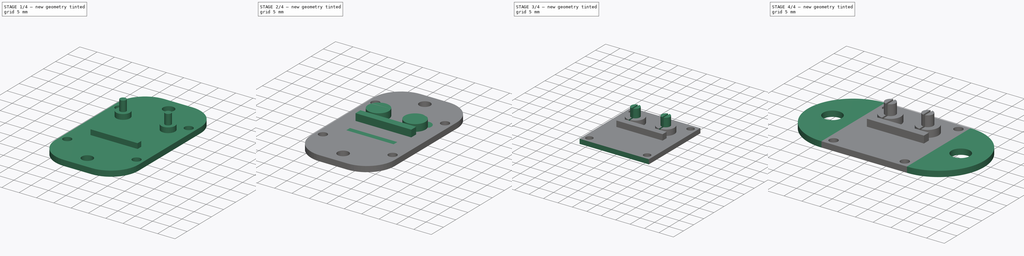
[diagram: build sequence overview — one tinted view per stage of 4, left to right]
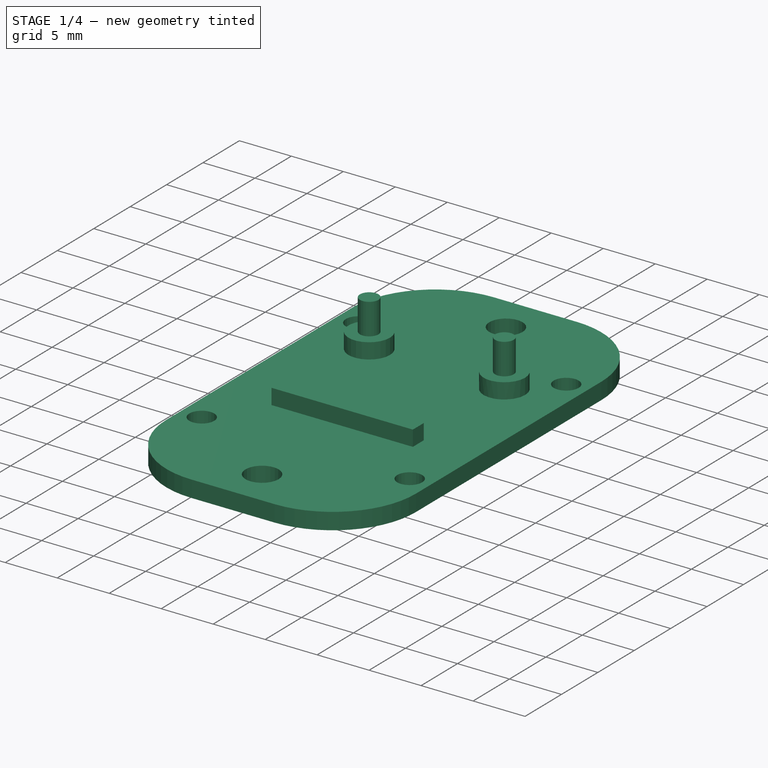
[diagram: stage 1 of 4 — iso view after this stage's code; geometry added in this stage tinted green]
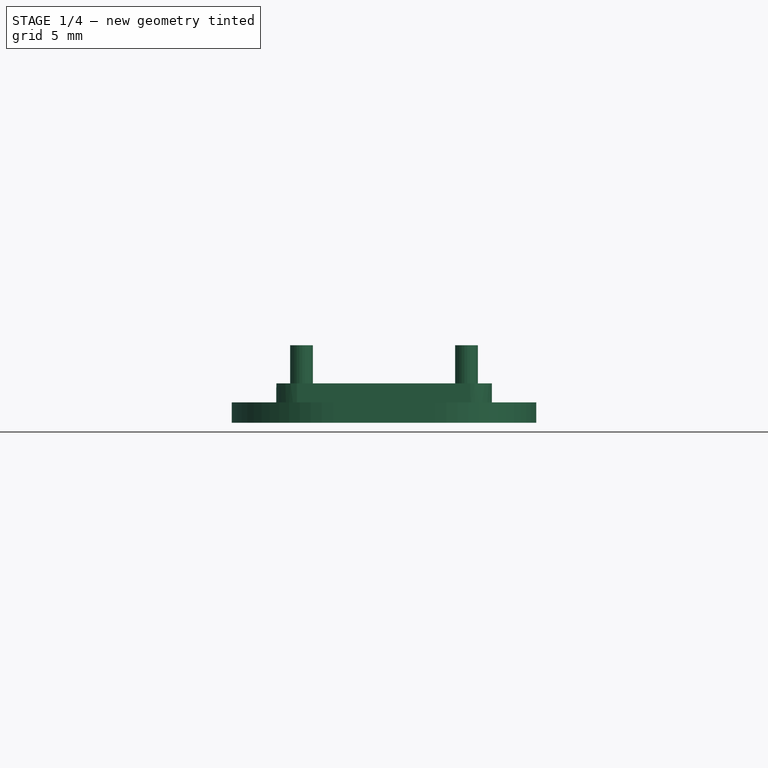
[diagram: stage 1 of 4 — front view after this stage's code; geometry added in this stage tinted green]
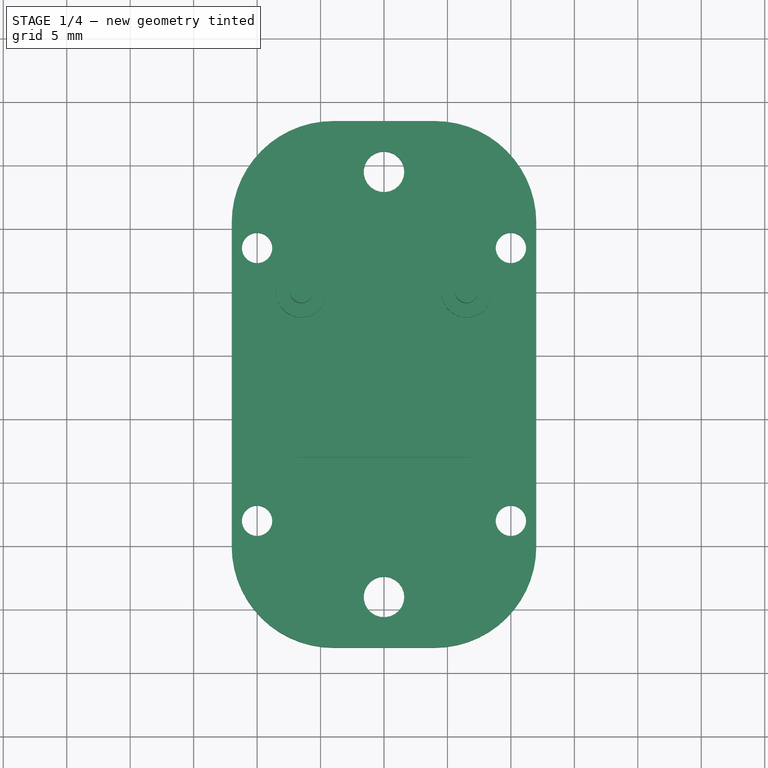
[diagram: stage 1 of 4 — top view after this stage's code; geometry added in this stage tinted green]
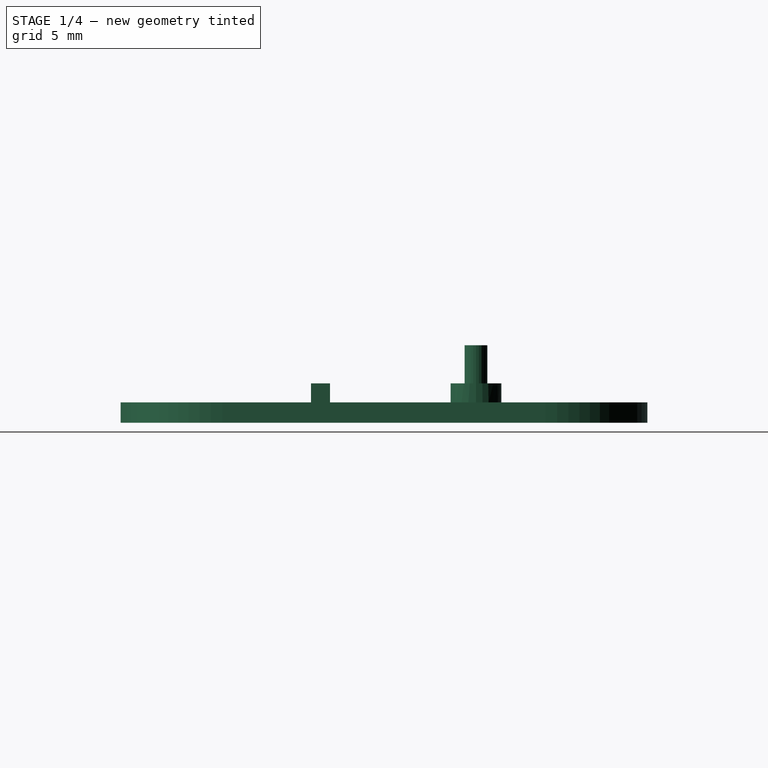
[diagram: stage 1 of 4 — right view after this stage's code; geometry added in this stage tinted green]
FCSTD DOCUMENT  (FreeCAD 0.19R24415 (Git))
Label: BME280CaseBottom
License: All rights reserved
LicenseURL: http://en.wikipedia.org/wiki/All_rights_reserved
objects: Sketcher::SketchObject×8, PartDesign::Pad×4, PartDesign::Pocket×4, App::MeasureDistance×2, Part::Feature×1, PartDesign::FeatureBase×1, PartDesign::Body×1
note: 27 computed .brp shape members not serialized (recipe doc carries the construction recipe); baked Part::Feature solids carry a one-line shape summary decoded from their .brp

FEATURE [Part::Feature] BMP280_Base001001_solid  label="BMP280_Base001001 (Solid)"
  shape: bbox 24 x 41.5 x 6.1 mm, 755 faces (baked)
FEATURE [PartDesign::FeatureBase] BaseFeature
  BaseFeature = -> BMP280_Base001001_solid
FEATURE [Sketcher::SketchObject] Sketch
  FullyConstrained = true
  MapMode = 5
  Support = -> [XY_Plane]
  sketch-geometry (4):
    g0: LineSegment StartX=-10 StartY=16 StartZ=0 EndX=10 EndY=16 EndZ=0
    g1: LineSegment StartX=10 StartY=16 StartZ=0 EndX=10 EndY=11 EndZ=0
    g2: LineSegment StartX=10 StartY=11 StartZ=0 EndX=-10 EndY=11 EndZ=0
    g3: LineSegment StartX=-10 StartY=11 StartZ=0 EndX=-10 EndY=16 EndZ=0
  constraints (12):
    c: Coincident(g0,g1)
    c: Coincident(g1,g2)
    c: Coincident(g2,g3)
    c: Coincident(g3,g0)
    c: Horizontal(g0)
    c: Horizontal(g2)
    c: Vertical(g1)
    c: Vertical(g3)
    c: DistanceY(g3,g3) = 5
    c: DistanceY(g-1,g2) = 11
    c: DistanceX(g0,g0) = 20
    c: DistanceX(g-1,g0) = 10
FEATURE [PartDesign::Pad] Pad
  BaseFeature = -> BaseFeature
  Direction = (1,1,1)
  Length = 1.6
  Length2 = 100
  Profile = -> Sketch
  Type = 0
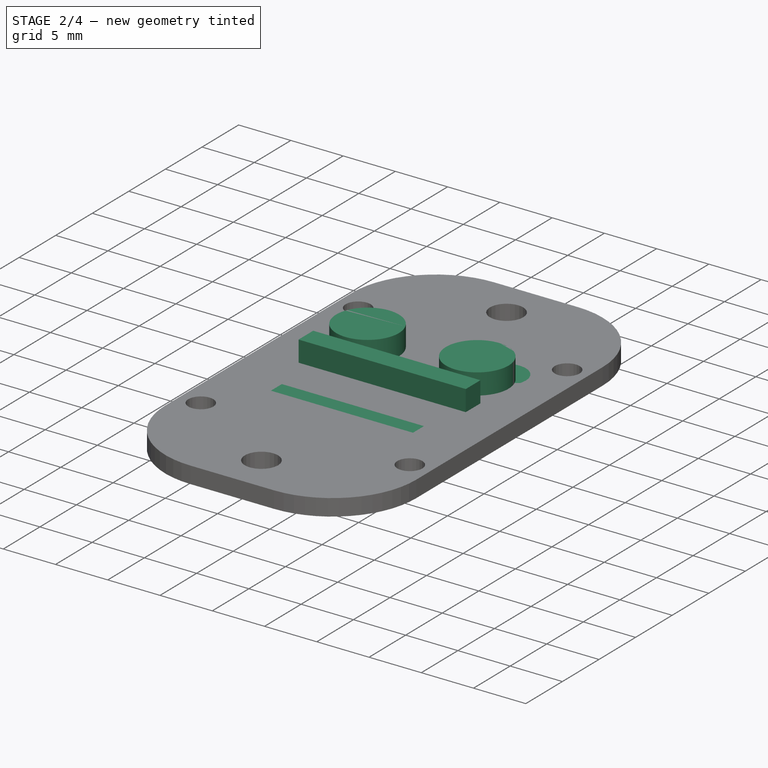
[diagram: stage 2 of 4 — iso view after this stage's code; geometry added in this stage tinted green]
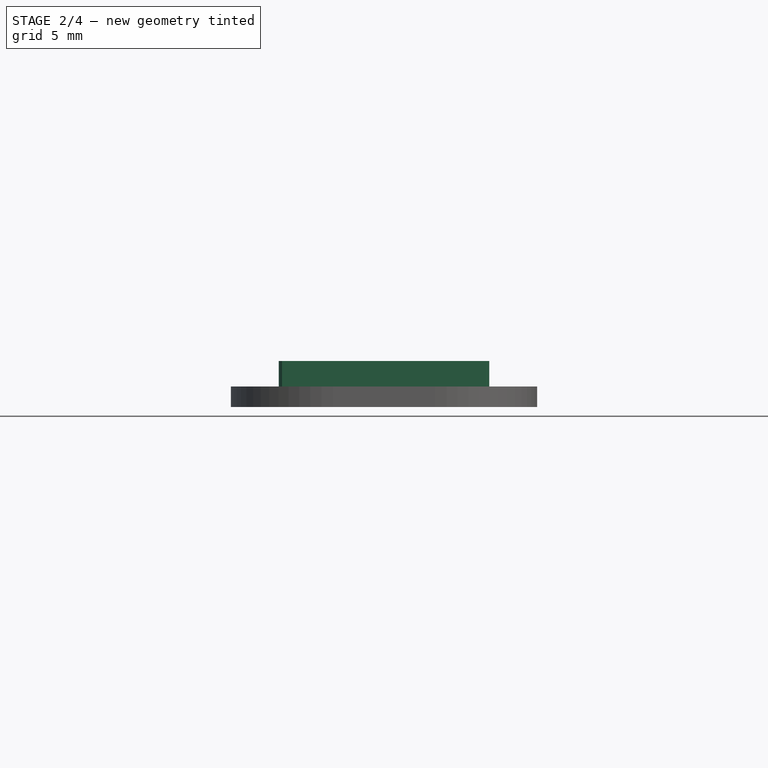
[diagram: stage 2 of 4 — front view after this stage's code; geometry added in this stage tinted green]
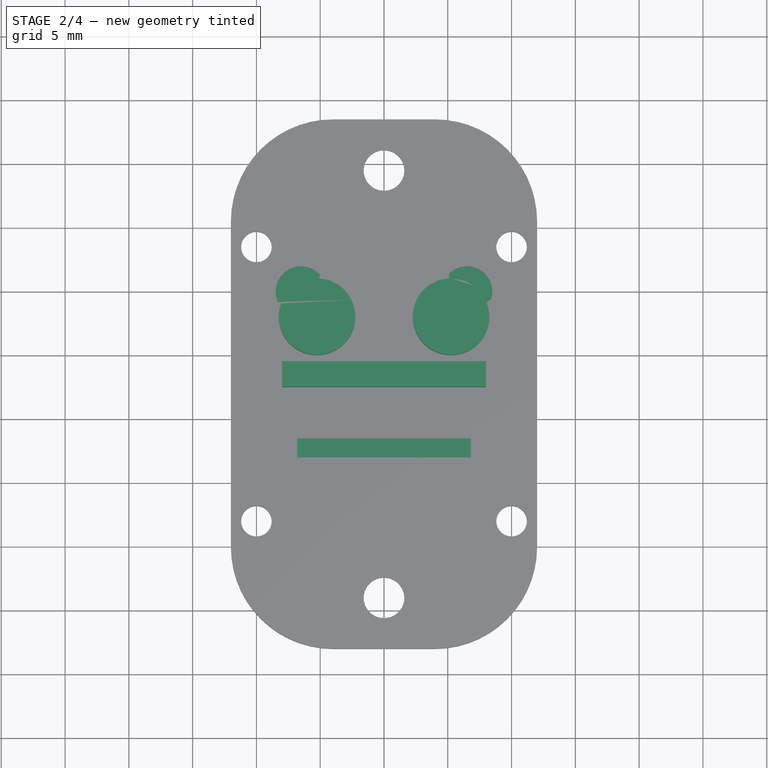
[diagram: stage 2 of 4 — top view after this stage's code; geometry added in this stage tinted green]
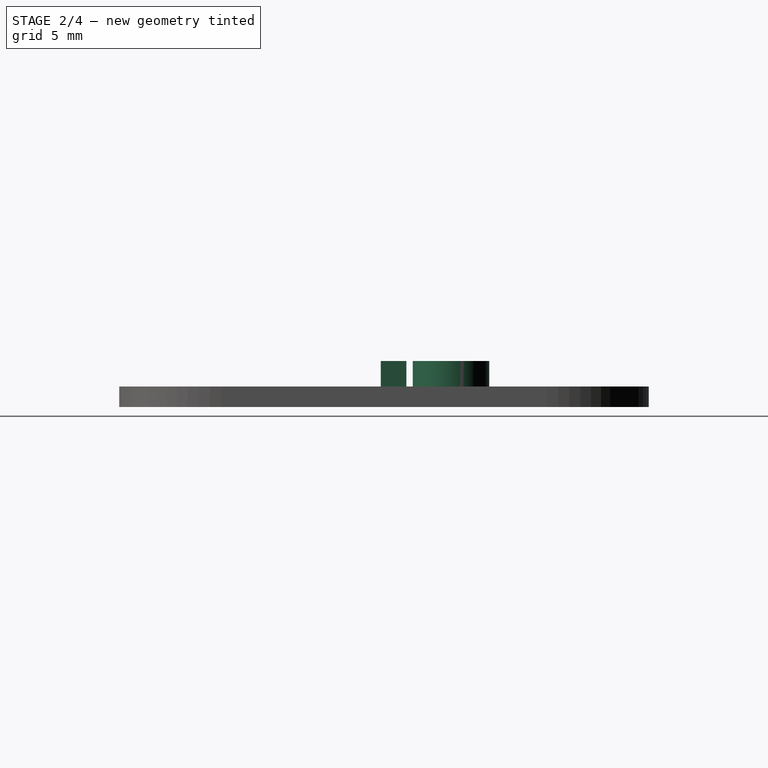
[diagram: stage 2 of 4 — right view after this stage's code; geometry added in this stage tinted green]
FEATURE [App::MeasureDistance] Distance  label="Distance: 1,60 mm"
  Distance = 1.60053
  P1 = (-12,9.27502,1.6)
  P2 = (-12,9.23368,0)
FEATURE [Sketcher::SketchObject] Sketch001
  FullyConstrained = true
  MapMode = 5
  Placement = pos=(0,0,0) rot=(0.57735,0.57735,0.57735;2.0944rad)
  Support = -> [YZ_Plane]
  sketch-geometry (4):
    g0: LineSegment StartX=6.5 StartY=6.6 StartZ=0 EndX=23.5 EndY=6.6 EndZ=0
    g1: LineSegment StartX=23.5 StartY=6.6 StartZ=0 EndX=23.5 EndY=1.6 EndZ=0
    g2: LineSegment StartX=23.5 StartY=1.6 StartZ=0 EndX=6.5 EndY=1.6 EndZ=0
    g3: LineSegment StartX=6.5 StartY=1.6 StartZ=0 EndX=6.5 EndY=6.6 EndZ=0
  constraints (12):
    c: Coincident(g0,g1)
    c: Coincident(g1,g2)
    c: Coincident(g2,g3)
    c: Coincident(g3,g0)
    c: Horizontal(g0)
    c: Horizontal(g2)
    c: Vertical(g1)
    c: Vertical(g3)
    c: DistanceX(g0,g0) = 17
    c: DistanceX(g-1,g2) = 6.5
    c: DistanceY(g1,g1) = 5
    c: DistanceY(g-1,g2) = 1.6
FEATURE [PartDesign::Pocket] Pocket
  BaseFeature = -> Pad
  Length = 20
  Length2 = 100
  Midplane = true
  Profile = -> Sketch001
  Type = 0
FEATURE [Sketcher::SketchObject] Sketch002
  FullyConstrained = true
  MapMode = 5
  Placement = pos=(0,0,1.6) rot=(0,0,1;0rad)
  Support = -> [Pocket]
  expr: Constraints[13] = .Constraints.holeSeparation / 2
  sketch-geometry (6):
    g0: Circle CenterX=-5.25 CenterY=18 CenterZ=0 NormalX=0 NormalY=0 NormalZ=1 AngleXU=0 Radius=3
    g1: Circle CenterX=5.25 CenterY=18 CenterZ=0 NormalX=0 NormalY=0 NormalZ=1 AngleXU=0 Radius=3
    g2: LineSegment StartX=-8 StartY=14.5 StartZ=0 EndX=8 EndY=14.5 EndZ=0
    g3: LineSegment StartX=8 StartY=14.5 StartZ=0 EndX=8 EndY=12.5 EndZ=0
    g4: LineSegment StartX=8 StartY=12.5 StartZ=0 EndX=-8 EndY=12.5 EndZ=0
    g5: LineSegment StartX=-8 StartY=12.5 StartZ=0 EndX=-8 EndY=14.5 EndZ=0
  constraints (18):
    c: Coincident(g2,g3)
    c: Coincident(g3,g4)
    c: Coincident(g4,g5)
    c: Coincident(g5,g2)
    c: Horizontal(g2)
    c: Horizontal(g4)
    c: Vertical(g3)
    c: Vertical(g5)
    c: Radius(g1) = 3
    c: Radius(g0) = 3
    c: DistanceX(g0,g1) = 10.5  'holeSeparation'
    c: DistanceY(g-1,g0) = 18  'holeY'
    c: Horizontal(g1,g0)
    c: DistanceX(g0,g-1) = 5.25
    c: DistanceY(g3,g1) = 5.5
    c: DistanceY(g3,g3) = 2
    c: DistanceX(g2,g2) = 16
    c: DistanceX(g4,g-1) = 8
FEATURE [PartDesign::Pad] Pad001
  BaseFeature = -> Pocket
  Direction = (1,1,1)
  Length = 2
  Length2 = 100
  Profile = -> Sketch002
  Type = 0
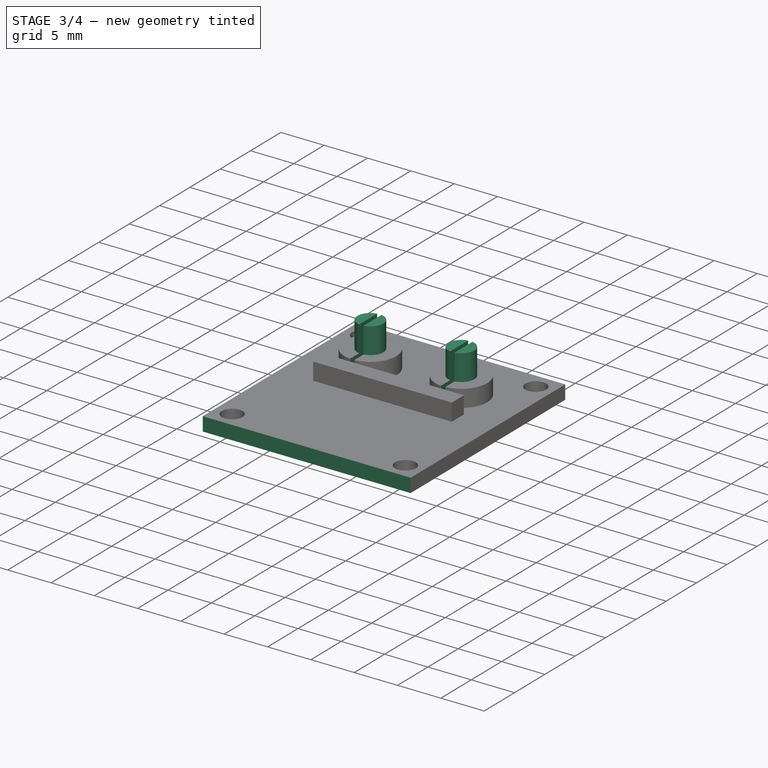
[diagram: stage 3 of 4 — iso view after this stage's code; geometry added in this stage tinted green]
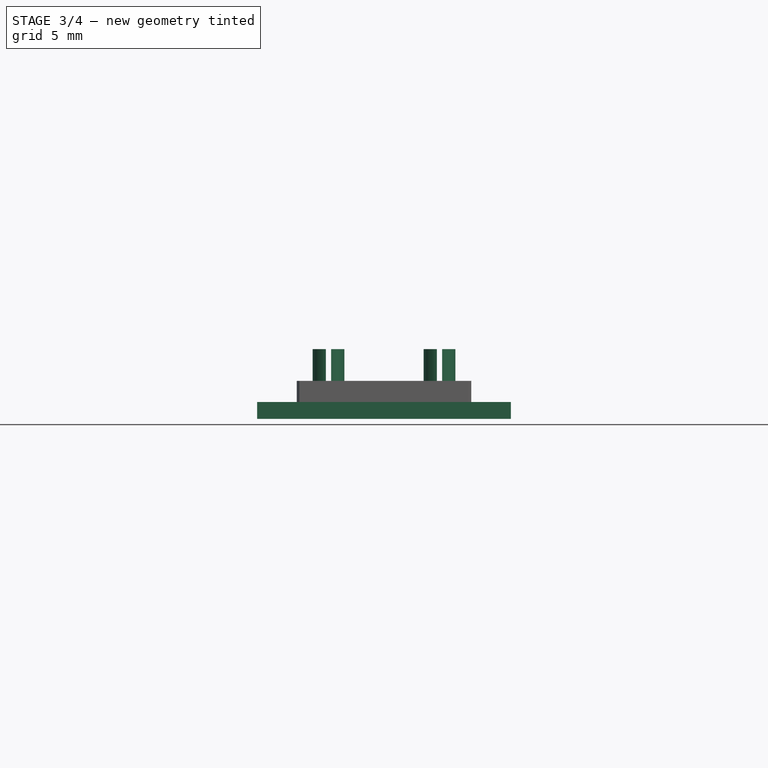
[diagram: stage 3 of 4 — front view after this stage's code; geometry added in this stage tinted green]
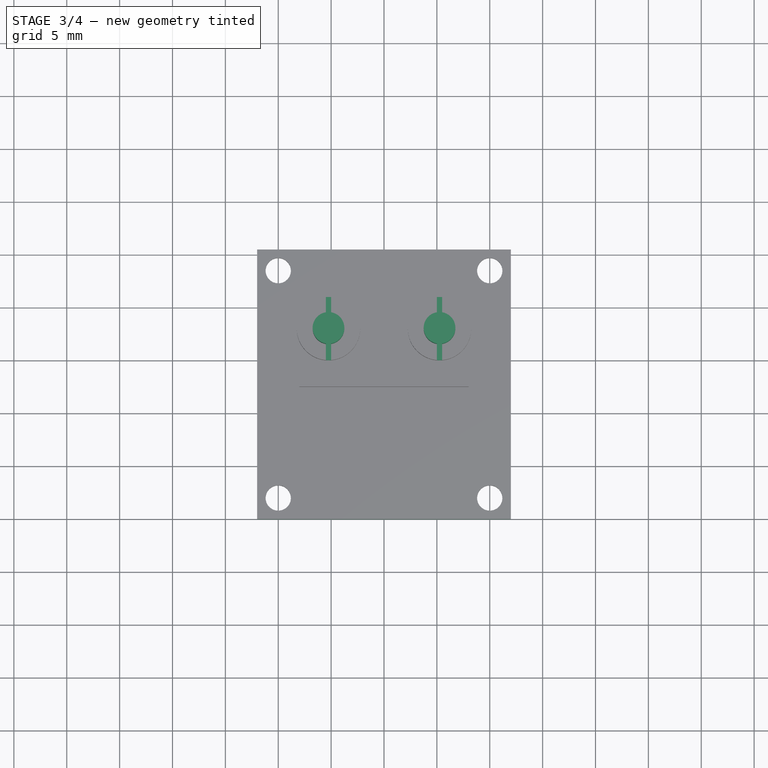
[diagram: stage 3 of 4 — top view after this stage's code; geometry added in this stage tinted green]
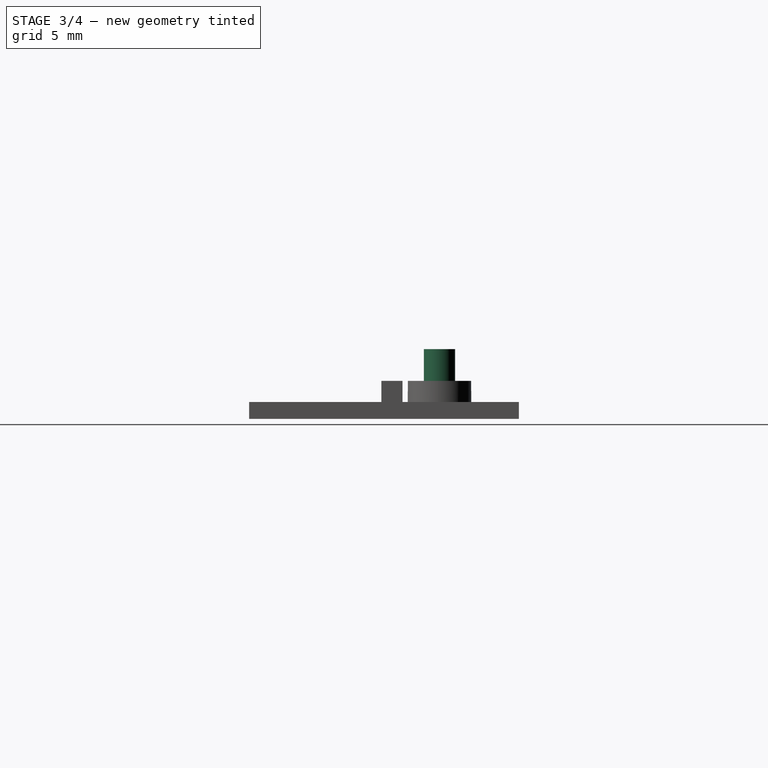
[diagram: stage 3 of 4 — right view after this stage's code; geometry added in this stage tinted green]
FEATURE [Sketcher::SketchObject] Sketch003
  FullyConstrained = true
  MapMode = 5
  Placement = pos=(0,0,1.6) rot=(0,0,1;0rad)
  Support = -> [Pad001]
  expr: Constraints[3] = Sketch002.Constraints.holeSeparation / 2
  expr: Constraints[5] = Sketch002.Constraints.holeY
  expr: Constraints[2] = Sketch002.Constraints.holeSeparation
  sketch-geometry (2):
    g0: Circle CenterX=-5.25 CenterY=18 CenterZ=0 NormalX=0 NormalY=0 NormalZ=1 AngleXU=0 Radius=1.5
    g1: Circle CenterX=5.25 CenterY=18 CenterZ=0 NormalX=0 NormalY=0 NormalZ=1 AngleXU=0 Radius=1.5
  constraints (6):
    c: Radius(g0) = 1.5
    c: Equal(g1,g0)
    c: DistanceX(g0,g1) = 10.5
    c: DistanceX(g0,g-1) = 5.25
    c: Horizontal(g0,g1)
    c: DistanceY(g-1,g0) = 18
FEATURE [PartDesign::Pad] Pad002
  BaseFeature = -> Pad001
  Direction = (1,1,1)
  Length = 5
  Length2 = 100
  Profile = -> Sketch003
  Type = 0
FEATURE [Sketcher::SketchObject] Sketch004
  AttachmentOffset = pos=(0,0,1) rot=(0,0,1;0rad)
  FullyConstrained = true
  MapMode = 5
  Placement = pos=(0,0,2.6) rot=(0,0,1;0rad)
  Support = -> [Pad002]
  expr: Constraints[23] = Sketch002.Constraints.holeSeparation / 2 - .Constraints.holeSplit / 2
  expr: Constraints[17] = Sketch002.Constraints.holeSeparation / 2 - .Constraints.holeSplit / 2
  sketch-geometry (8):
    g0: LineSegment StartX=-5.5 StartY=22 StartZ=0 EndX=-5 EndY=22 EndZ=0
    g1: LineSegment StartX=-5 StartY=22 StartZ=0 EndX=-5 EndY=15 EndZ=0
    g2: LineSegment StartX=-5 StartY=15 StartZ=0 EndX=-5.5 EndY=15 EndZ=0
    g3: LineSegment StartX=-5.5 StartY=15 StartZ=0 EndX=-5.5 EndY=22 EndZ=0
    g4: LineSegment StartX=5 StartY=22 StartZ=0 EndX=5.5 EndY=22 EndZ=0
    g5: LineSegment StartX=5.5 StartY=22 StartZ=0 EndX=5.5 EndY=15 EndZ=0
    g6: LineSegment StartX=5.5 StartY=15 StartZ=0 EndX=5 EndY=15 EndZ=0
    g7: LineSegment StartX=5 StartY=15 StartZ=0 EndX=5 EndY=22 EndZ=0
  constraints (24):
    c: Coincident(g0,g1)
    c: Coincident(g1,g2)
    c: Coincident(g2,g3)
    c: Coincident(g3,g0)
    c: Horizontal(g0)
    c: Horizontal(g2)
    c: Vertical(g1)
    c: Vertical(g3)
    c: Coincident(g4,g5)
    c: Coincident(g5,g6)
    c: Coincident(g6,g7)
    c: Coincident(g7,g4)
    c: Horizontal(g4)
    c: Horizontal(g6)
    c: Vertical(g5)
    c: Vertical(g7)
    c: DistanceX(g2,g2) = 0.5  'holeSplit'
    c: DistanceX(g1,g-1) = 5
    c: DistanceY(g3,g3) = 7
    c: DistanceY(g-1,g1) = 15
    c: Horizontal(g1,g6)
    c: Equal(g6,g2)
    c: Equal(g7,g3)
    c: DistanceX(g-1,g6) = 5
FEATURE [PartDesign::Pocket] Pocket001
  BaseFeature = -> Pad002
  Length = 5
  Length2 = 100
  Profile = -> Sketch004
  Reversed = true
  Type = 0
FEATURE [Sketcher::SketchObject] Sketch005
  FullyConstrained = false
  MapMode = 5
  Support = -> [XY_Plane]
  sketch-geometry (8):
    g0: LineSegment StartX=-12.6746 StartY=0 StartZ=0 EndX=13.1387 EndY=0 EndZ=0
    g1: LineSegment StartX=13.1387 StartY=0 StartZ=0 EndX=13.1387 EndY=-9.99736 EndZ=0
    g2: LineSegment StartX=13.1387 StartY=-9.99736 StartZ=0 EndX=-12.6746 EndY=-9.99736 EndZ=0
    g3: LineSegment StartX=-12.6746 StartY=-9.99736 StartZ=0 EndX=-12.6746 EndY=0 EndZ=0
    g4: LineSegment StartX=-15.6688 StartY=35.3158 StartZ=0 EndX=16.2363 EndY=35.3158 EndZ=0
    g5: LineSegment StartX=16.2363 StartY=35.3158 StartZ=0 EndX=16.2363 EndY=25.5 EndZ=0
    g6: LineSegment StartX=16.2363 StartY=25.5 StartZ=0 EndX=-15.6688 EndY=25.5 EndZ=0
    g7: LineSegment StartX=-15.6688 StartY=25.5 StartZ=0 EndX=-15.6688 EndY=35.3158 EndZ=0
  constraints (18):
    c: Coincident(g0,g1)
    c: Coincident(g1,g2)
    c: Coincident(g2,g3)
    c: Coincident(g3,g0)
    c: Horizontal(g0)
    c: Horizontal(g2)
    c: Vertical(g1)
    c: Vertical(g3)
    c: PointOnObject(g0,g-1)
    c: Coincident(g4,g5)
    c: Coincident(g5,g6)
    c: Coincident(g6,g7)
    c: Coincident(g7,g4)
    c: Horizontal(g4)
    c: Horizontal(g6)
    c: Vertical(g5)
    c: Vertical(g7)
    c: DistanceY(g0,g6) = 25.5
FEATURE [PartDesign::Pocket] Pocket002
  BaseFeature = -> Pocket001
  Length = 2
  Length2 = 100
  Profile = -> Sketch005
  Reversed = true
  Type = 0
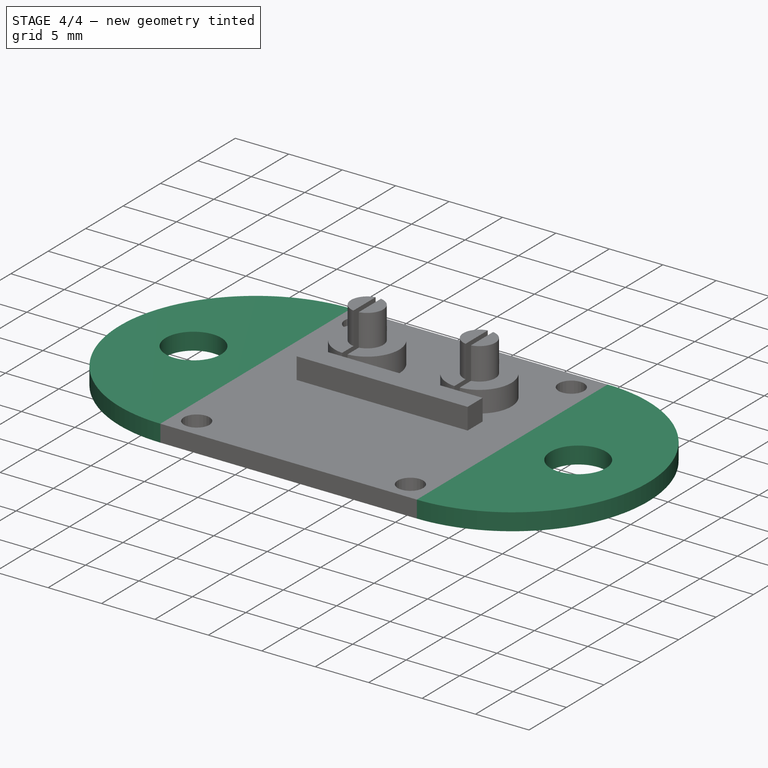
[diagram: stage 4 of 4 — iso view after this stage's code; geometry added in this stage tinted green]
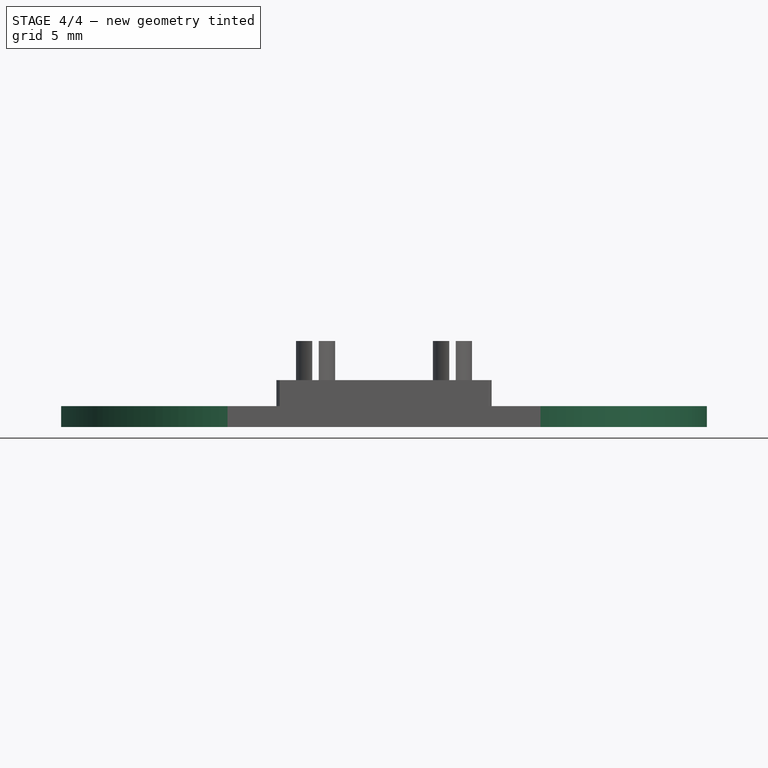
[diagram: stage 4 of 4 — front view after this stage's code; geometry added in this stage tinted green]
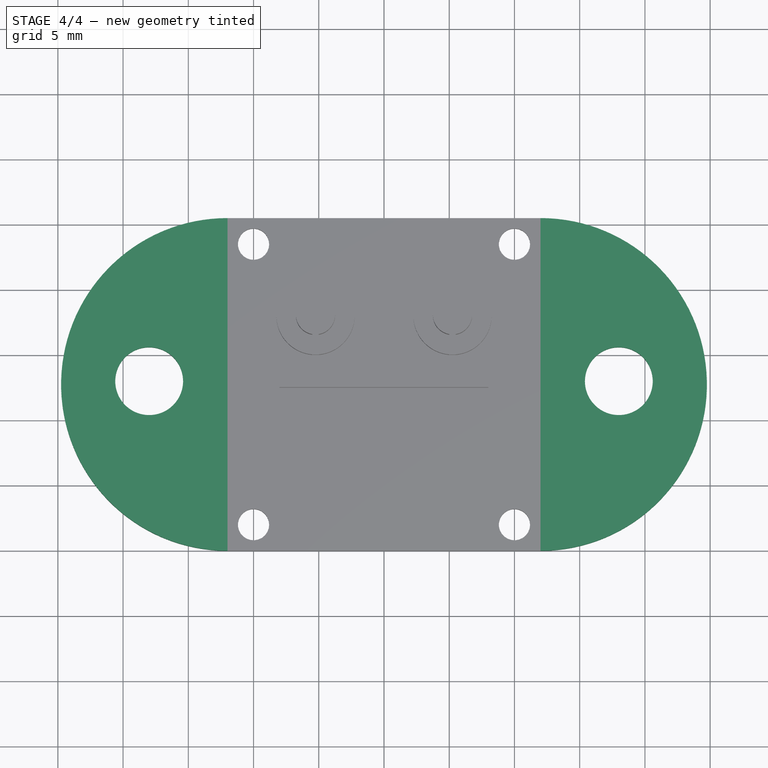
[diagram: stage 4 of 4 — top view after this stage's code; geometry added in this stage tinted green]
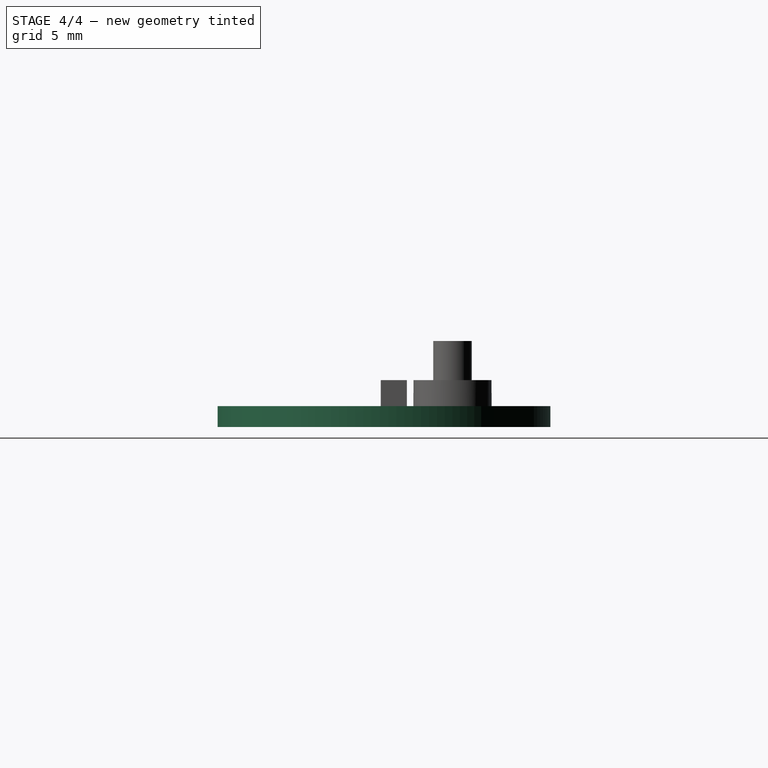
[diagram: stage 4 of 4 — right view after this stage's code; geometry added in this stage tinted green]
FEATURE [Sketcher::SketchObject] Sketch006
  FullyConstrained = true
  MapMode = 5
  Support = -> [XY_Plane]
  sketch-geometry (4):
    g0: ArcOfCircle CenterX=12 CenterY=12.75 CenterZ=0 NormalX=0 NormalY=0 NormalZ=1 AngleXU=0 Radius=12.75 StartAngle=4.71239 EndAngle=7.85398
    g1: ArcOfCircle CenterX=-12 CenterY=12.75 CenterZ=0 NormalX=0 NormalY=0 NormalZ=1 AngleXU=0 Radius=12.75 StartAngle=1.5708 EndAngle=4.71239
    g2: LineSegment StartX=-12 StartY=25.5 StartZ=0 EndX=-12 EndY=0 EndZ=0
    g3: LineSegment StartX=12 StartY=25.5 StartZ=0 EndX=12 EndY=0 EndZ=0
  constraints (14):
    c: PointOnObject(g0,g-1)
    c: PointOnObject(g1,g-1)
    c: Vertical(g0,g0)
    c: Vertical(g0,g0)
    c: Vertical(g1,g1)
    c: Vertical(g1,g1)
    c: DistanceY(g0,g0) = 25.5
    c: DistanceY(g1,g1) = 25.5
    c: DistanceX(g-1,g0) = 12
    c: Coincident(g2,g1)
    c: Coincident(g2,g1)
    c: Coincident(g3,g0)
    c: Coincident(g3,g0)
    c: DistanceX(g1,g-1) = 12
FEATURE [PartDesign::Pad] Pad003
  BaseFeature = -> Pocket002
  Direction = (1,1,1)
  Length = 1.6
  Length2 = 100
  Profile = -> Sketch006
  Type = 0
FEATURE [App::MeasureDistance] Distance001  label="Distance: 1,40 mm"
  Distance = 1.39918
  P1 = (0.245495,25.5,1.41483)
  P2 = (0.462275,25.5,0.0325442)
FEATURE [Sketcher::SketchObject] Sketch007
  FullyConstrained = true
  MapMode = 5
  Support = -> [XY_Plane]
  sketch-geometry (2):
    g0: Circle CenterX=18 CenterY=13 CenterZ=0 NormalX=0 NormalY=0 NormalZ=1 AngleXU=0 Radius=2.6
    g1: Circle CenterX=-18 CenterY=13 CenterZ=0 NormalX=0 NormalY=0 NormalZ=1 AngleXU=0 Radius=2.6
  constraints (6):
    c: DistanceX(g1,g-1) = 18
    c: DistanceX(g-1,g0) = 18
    c: DistanceY(g-1,g1) = 13
    c: DistanceY(g-1,g0) = 13
    c: Radius(g1) = 2.6
    c: Equal(g0,g1)
FEATURE [PartDesign::Pocket] Pocket003
  BaseFeature = -> Pad003
  Length = 5
  Length2 = 100
  Profile = -> Sketch007
  Reversed = true
  Type = 2
FEATURE [PartDesign::Body] Body
  BaseFeature = -> BMP280_Base001001_solid
  Group = -> [BaseFeature,Sketch,Pad,Sketch001,Pocket,Sketch002,Pad001,Sketch003,Pad002,Sketch004,Pocket001,Sketch005,Pocket002,Sketch006,Pad003,Sketch007,Pocket003]
  Origin = -> Origin
  Tip = -> Pocket003
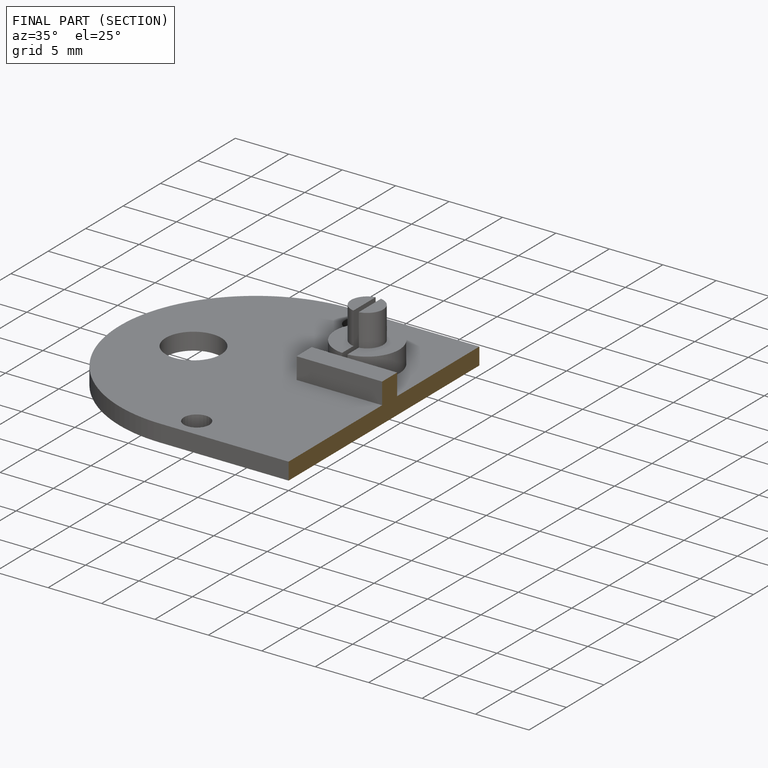
[diagram: finished part — half-section view (interior)]
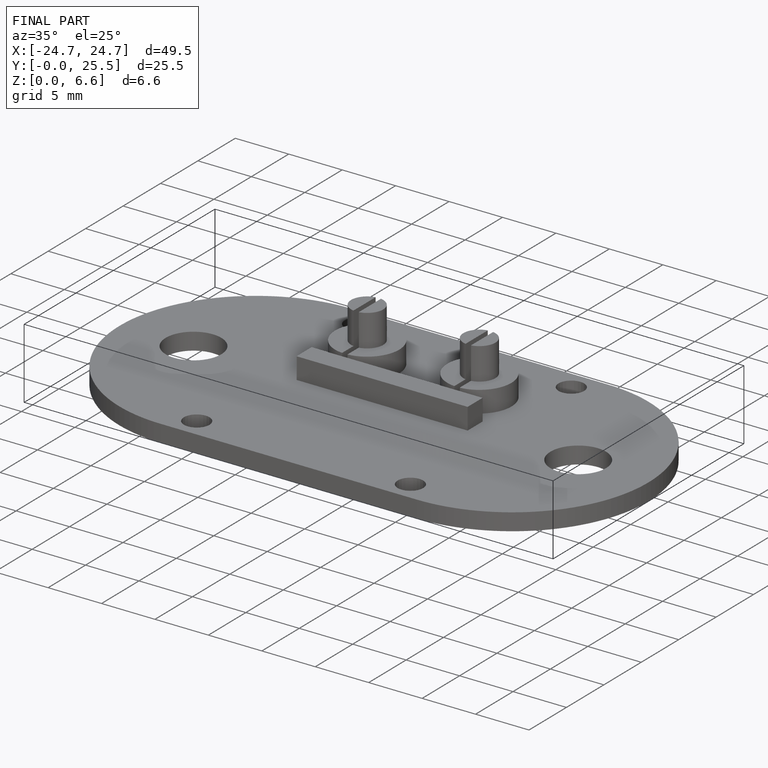
[diagram: finished part — iso view with bounding-box wireframe]
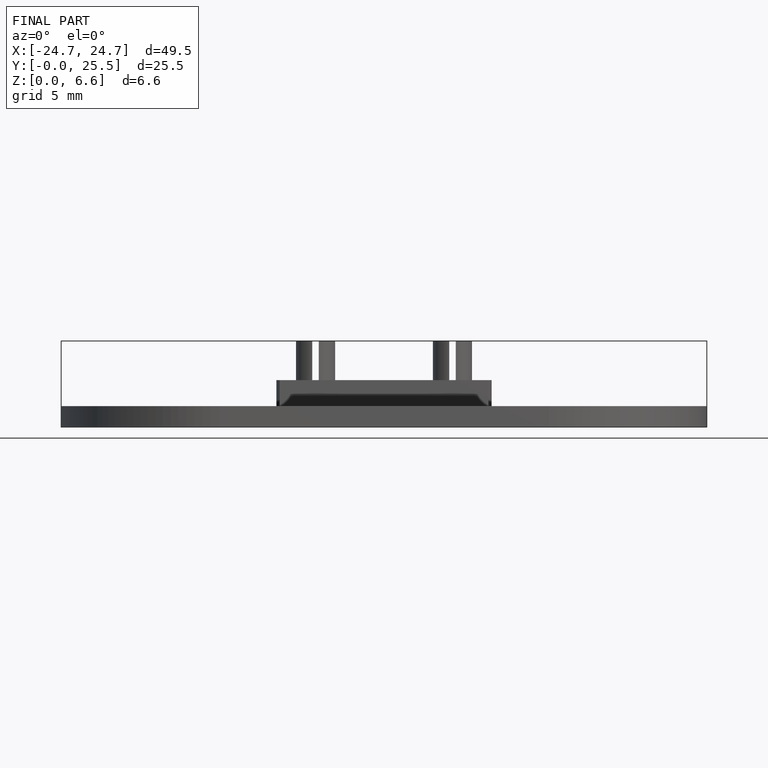
[diagram: finished part — front view with bounding-box wireframe]
